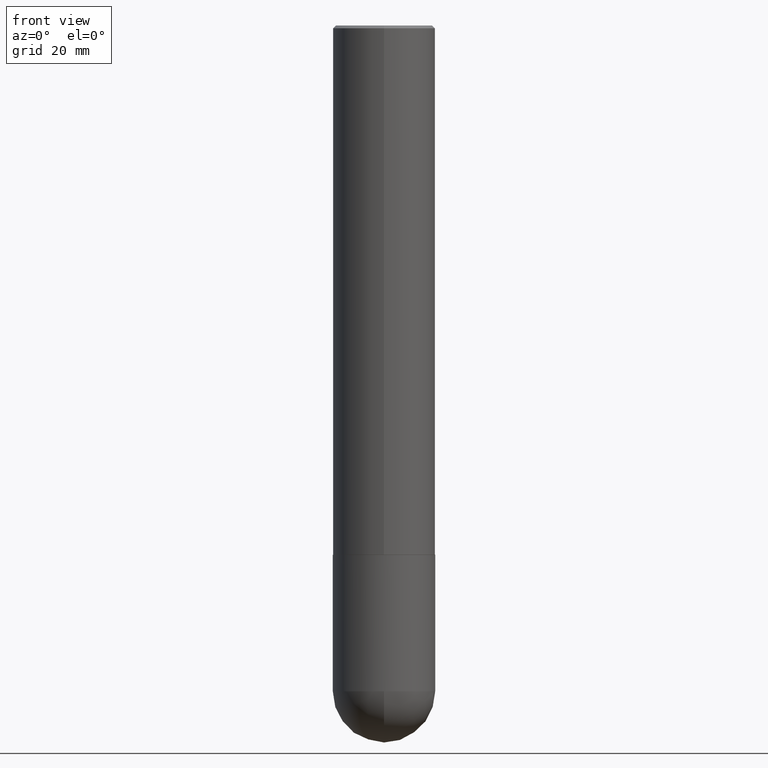
[diagram: clean part render]
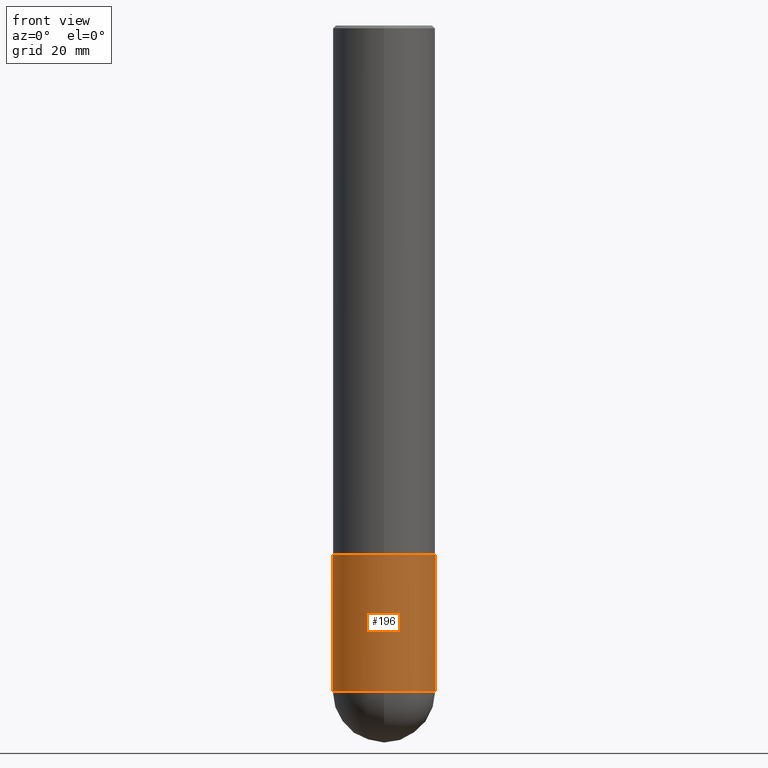
[diagram: same view with one face highlighted and labeled with its STEP entity id]
A machine part, front view. The second image highlights one B-rep face of the part: STEP entity #196.
In plain terms, the highlighted cylindrical surface (partial cylindrical patch) has radius 9.525 mm, axis along (-0, 0, 1).
Its self-contained STEP definition (entity closure, byte-faithful):
#14 = CIRCLE ( 'NONE', #156, 0.3750000000000001110 ) ;
#24 = AXIS2_PLACEMENT_3D ( 'NONE', #124, #256, #247 ) ;
#39 = ORIENTED_EDGE ( 'NONE', *, *, #277, .F. ) ;
#45 = VERTEX_POINT ( 'NONE', #346 ) ;
#50 = ORIENTED_EDGE ( 'NONE', *, *, #323, .T. ) ;
#53 = AXIS2_PLACEMENT_3D ( 'NONE', #86, #55, #175 ) ;
#55 = DIRECTION ( 'NONE',  ( -2.445468806185136597E-29, 3.491481338843145583E-15, 1.000000000000000000 ) ) ;
#74 = CIRCLE ( 'NONE', #53, 0.3750000000000000555 ) ;
#80 = VERTEX_POINT ( 'NONE', #95 ) ;
#86 = CARTESIAN_POINT ( 'NONE',  ( 9.476191623967404313E-29, -1.352949018801718908E-14, -3.875000000000000000 ) ) ;
#95 = CARTESIAN_POINT ( 'NONE',  ( 0.3750000000000000555, -1.614810119214954068E-14, -3.875000000000000000 ) ) ;
#115 = DIRECTION ( 'NONE',  ( -2.445468806185136877E-29, 3.491481338843145188E-15, 1.000000000000000000 ) ) ;
#119 = CARTESIAN_POINT ( 'NONE',  ( 0.000000000000000000, 0.000000000000000000, 0.000000000000000000 ) ) ;
#120 = CARTESIAN_POINT ( 'NONE',  ( -2.664535259100258157E-15, -0.3750000000000173195, -4.874999999999999112 ) ) ;
#123 = AXIS2_PLACEMENT_3D ( 'NONE', #119, #290, #249 ) ;
#124 = CARTESIAN_POINT ( 'NONE',  ( 1.192166043015254091E-28, -1.702097152686033664E-14, -4.875000000000000000 ) ) ;
#128 = VECTOR ( 'NONE', #248, 39.37007874015748143 ) ;
#152 = ORIENTED_EDGE ( 'NONE', *, *, #246, .F. ) ;
#156 = AXIS2_PLACEMENT_3D ( 'NONE', #366, #204, #280 ) ;
#174 = CIRCLE ( 'NONE', #24, 0.3750000000000001110 ) ;
#175 = DIRECTION ( 'NONE',  ( 1.000000000000000000, -6.982962677686266711E-15, 0.000000000000000000 ) ) ;
#196 = ADVANCED_FACE ( 'NONE', ( #235 ), #412, .T. ) ;
#204 = DIRECTION ( 'NONE',  ( -2.445468806185136597E-29, 3.491481338843145583E-15, 1.000000000000000000 ) ) ;
#211 = CARTESIAN_POINT ( 'NONE',  ( 0.3750000000000001110, -2.618611004132350411E-15, 1.828566290923476483E-29 ) ) ;
#212 = CARTESIAN_POINT ( 'NONE',  ( -0.3750000000000001110, 2.664535259100376486E-15, -1.844600658845590159E-29 ) ) ;
#229 = VERTEX_POINT ( 'NONE', #120 ) ;
#235 = FACE_OUTER_BOUND ( 'NONE', #305, .T. ) ;
#246 = EDGE_CURVE ( 'NONE', #265, #45, #406, .T. ) ;
#247 = DIRECTION ( 'NONE',  ( 1.000000000000000000, -6.982962677686260400E-15, 0.000000000000000000 ) ) ;
#248 = DIRECTION ( 'NONE',  ( -2.445468806185136877E-29, 3.491481338843145188E-15, 1.000000000000000000 ) ) ;
#249 = DIRECTION ( 'NONE',  ( 1.000000000000000000, -6.982962677686265922E-15, 4.876176775795935793E-29 ) ) ;
#251 = EDGE_CURVE ( 'NONE', #229, #285, #174, .T. ) ;
#256 = DIRECTION ( 'NONE',  ( -2.445468806185136597E-29, 3.491481338843145583E-15, 1.000000000000000000 ) ) ;
#265 = VERTEX_POINT ( 'NONE', #349 ) ;
#277 = EDGE_CURVE ( 'NONE', #45, #80, #74, .T. ) ;
#280 = DIRECTION ( 'NONE',  ( 1.000000000000000000, -6.982962677686260400E-15, 0.000000000000000000 ) ) ;
#285 = VERTEX_POINT ( 'NONE', #316 ) ;
#290 = DIRECTION ( 'NONE',  ( -2.445468806185136597E-29, 3.491481338843145583E-15, 1.000000000000000000 ) ) ;
#292 = ORIENTED_EDGE ( 'NONE', *, *, #251, .T. ) ;
#302 = EDGE_CURVE ( 'NONE', #265, #229, #14, .T. ) ;
#305 = EDGE_LOOP ( 'NONE', ( #152, #330, #292, #50, #39 ) ) ;
#316 = CARTESIAN_POINT ( 'NONE',  ( 0.3750000000000001110, -1.789384186157111051E-14, -4.875000000000000000 ) ) ;
#323 = EDGE_CURVE ( 'NONE', #285, #80, #409, .T. ) ;
#330 = ORIENTED_EDGE ( 'NONE', *, *, #302, .T. ) ;
#338 = VECTOR ( 'NONE', #115, 39.37007874015748143 ) ;
#346 = CARTESIAN_POINT ( 'NONE',  ( -0.3750000000000000555, -1.261069559833838480E-14, -3.875000000000000000 ) ) ;
#349 = CARTESIAN_POINT ( 'NONE',  ( -0.3750000000000001110, -1.261069559833838637E-14, -4.875000000000000000 ) ) ;
#366 = CARTESIAN_POINT ( 'NONE',  ( 1.192166043015254091E-28, -1.702097152686033664E-14, -4.875000000000000000 ) ) ;
#406 = LINE ( 'NONE', #212, #338 ) ;
#409 = LINE ( 'NONE', #211, #128 ) ;
#412 = CYLINDRICAL_SURFACE ( 'NONE', #123, 0.3750000000000001110 ) ;